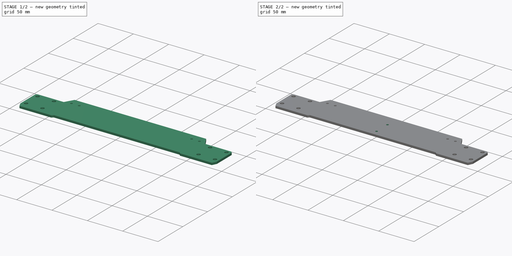
[diagram: build sequence overview — one tinted view per stage of 2, left to right]
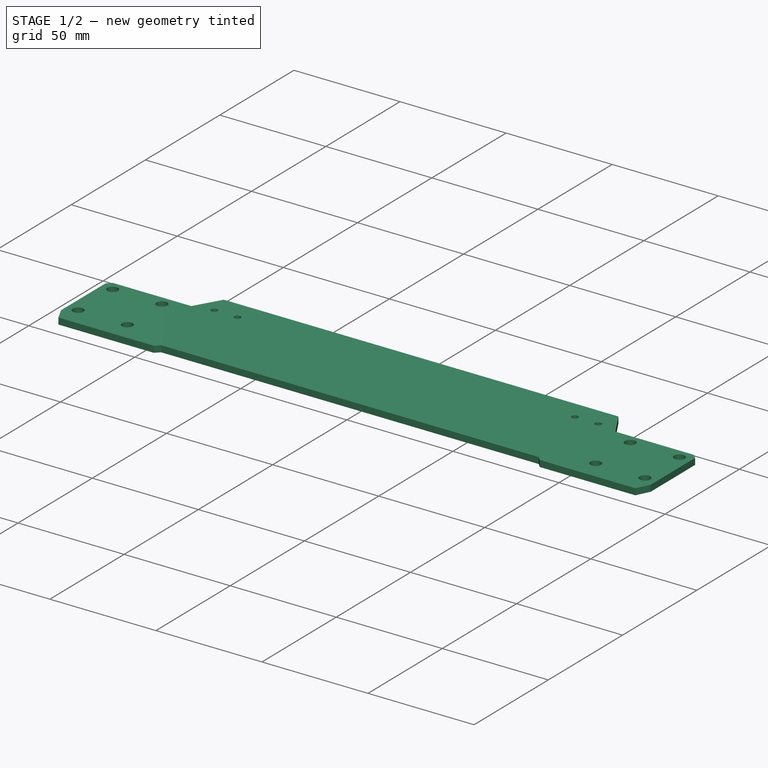
[diagram: stage 1 of 2 — iso view after this stage's code; geometry added in this stage tinted green]
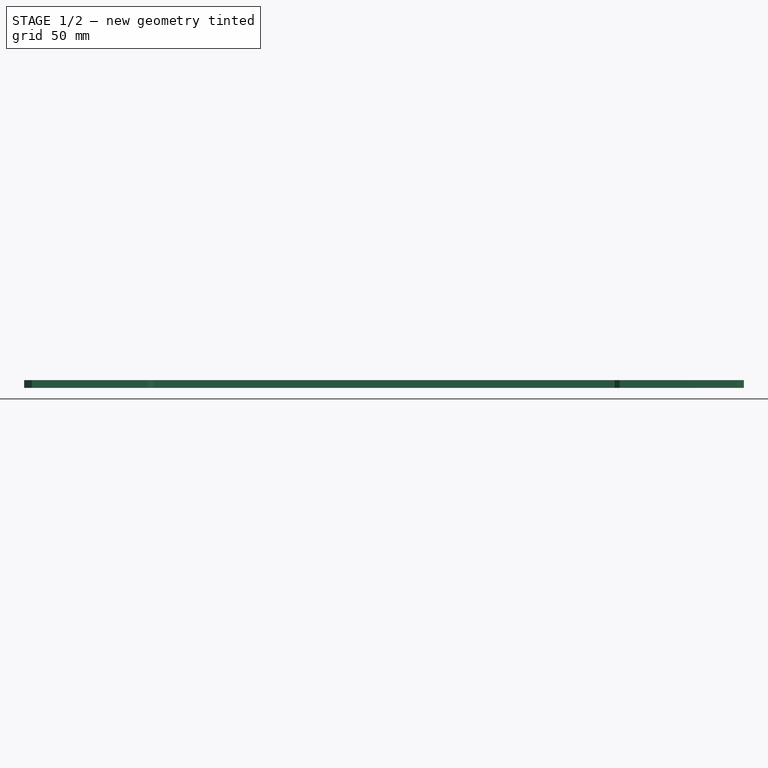
[diagram: stage 1 of 2 — front view after this stage's code; geometry added in this stage tinted green]
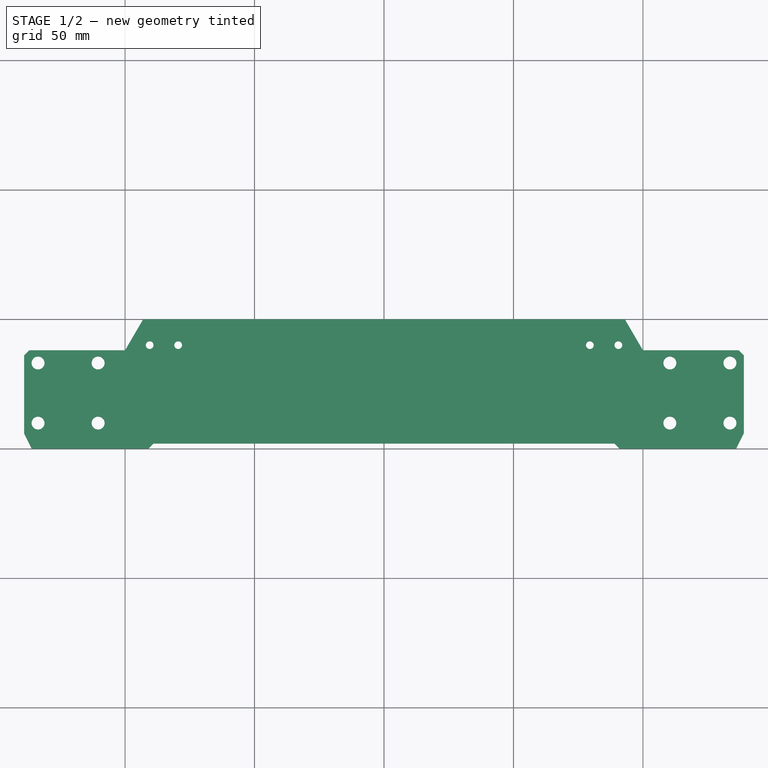
[diagram: stage 1 of 2 — top view after this stage's code; geometry added in this stage tinted green]
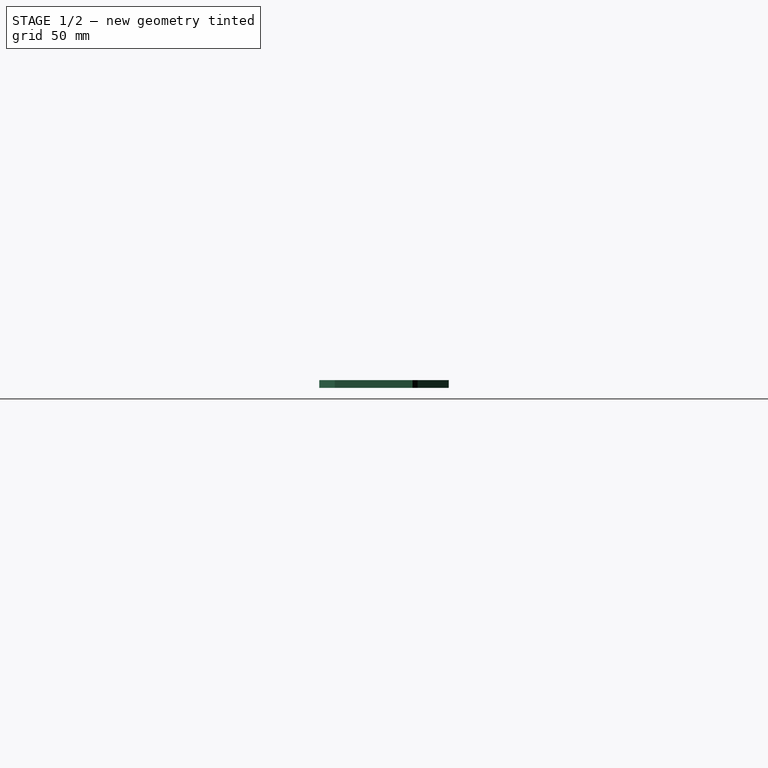
[diagram: stage 1 of 2 — right view after this stage's code; geometry added in this stage tinted green]
FCSTD DOCUMENT  (FreeCAD 0.21R33771 (Git))
Label: _MK3-rear-plate
License: Creative Commons Attribution 4.0
LicenseURL: https://creativecommons.org/licenses/by/4.0/
objects: Sketcher::SketchObject×2, PartDesign::Pad×1, PartDesign::Mirrored×1, PartDesign::Pocket×1, PartDesign::Body×1
note: 8 computed .brp shape members not serialized (recipe doc carries the construction recipe); baked Part::Feature solids carry a one-line shape summary decoded from their .brp

FEATURE [Sketcher::SketchObject] Sketch
  FullyConstrained = true
  MapMode = 5
  Support = -> [XY_Plane001]
  sketch-geometry (16):
    g0: LineSegment StartX=0 StartY=50 StartZ=0 EndX=0 EndY=2 EndZ=0
    g1: LineSegment StartX=0 StartY=2 StartZ=0 EndX=-89 EndY=2 EndZ=0
    g2: LineSegment StartX=-89 StartY=2 StartZ=0 EndX=-91 EndY=0 EndZ=0
    g3: LineSegment StartX=-91 StartY=0 StartZ=0 EndX=-136 EndY=0 EndZ=0
    g4: LineSegment StartX=-136 StartY=0 StartZ=0 EndX=-139 EndY=6 EndZ=0
    g5: LineSegment StartX=-139 StartY=6 StartZ=0 EndX=-139 EndY=36 EndZ=0
    g6: LineSegment StartX=-139 StartY=36 StartZ=0 EndX=-137.021 EndY=38 EndZ=0
    g7: LineSegment StartX=-137.021 StartY=38 StartZ=0 EndX=-100 EndY=38 EndZ=0
    g8: LineSegment StartX=-100 StartY=38 StartZ=0 EndX=-93 EndY=50 EndZ=0
    g9: LineSegment StartX=-93 StartY=50 StartZ=0 EndX=0 EndY=50 EndZ=0
    g10: Circle CenterX=-133.6 CenterY=33.1 CenterZ=0 NormalX=0 NormalY=0 NormalZ=1 AngleXU=0 Radius=2.5
    g11: Circle CenterX=-110.4 CenterY=33.1 CenterZ=0 NormalX=0 NormalY=0 NormalZ=1 AngleXU=0 Radius=2.5
    g12: Circle CenterX=-110.4 CenterY=9.9 CenterZ=0 NormalX=0 NormalY=0 NormalZ=1 AngleXU=0 Radius=2.5
    g13: Circle CenterX=-133.6 CenterY=9.9 CenterZ=0 NormalX=0 NormalY=0 NormalZ=1 AngleXU=0 Radius=2.5
    g14: Circle CenterX=-90.5 CenterY=40 CenterZ=0 NormalX=0 NormalY=0 NormalZ=1 AngleXU=0 Radius=1.5
    g15: Circle CenterX=-79.5 CenterY=40 CenterZ=0 NormalX=0 NormalY=0 NormalZ=1 AngleXU=0 Radius=1.5
  constraints (48):
    c: PointOnObject(g0,g-2)
    c: Coincident(g1,g2)
    c: PointOnObject(g2,g-1)
    c: Coincident(g2,g3)
    c: PointOnObject(g3,g-1)
    c: Coincident(g3,g4)
    c: Coincident(g4,g5)
    c: Vertical(g5)
    c: Coincident(g5,g6)
    c: Coincident(g6,g7)
    c: Horizontal(g7)
    c: Coincident(g7,g8)
    c: Coincident(g8,g9)
    c: Coincident(g9,g0)
    c: Horizontal(g9)
    c: Coincident(g0,g1)
    c: Vertical(g0)
    c: DistanceY(g-1,g0) = 2
    c: DistanceY(g-1,g0) = 50
    c: Horizontal(g1)
    c: DistanceX(g1,g-1) = 89
    c: DistanceX(g2,g-1) = 91
    c: DistanceX(g3,g0) = 136
    c: DistanceX(g5,g0) = 139
    c: DistanceY(g3,g4) = 6
    c: DistanceY(g3,g6) = 38
    c: Angle(g5,g6) = 2.36143
    c: DistanceY(g5,g6) = 2
    c: DistanceX(g9,g9) = 93
    c: DistanceX(g7,g0) = 100
    c: Horizontal(g10,g11)
    c: Horizontal(g13,g12)
    c: Vertical(g10,g13)
    c: Vertical(g11,g12)
    c: DistanceY(g-1,g12) = 9.9
    c: DistanceY(g12,g11) = 23.2
    c: DistanceX(g12,g0) = 110.4
    c: DistanceX(g10,g11) = 23.2
    c: Equal(g13,g10)
    c: Equal(g13,g11)
    c: Equal(g13,g12)
    c: Diameter(g13) = 5
    c: Horizontal(g14,g15)
    c: DistanceX(g14,g15) = 11
    c: DistanceY(g-1,g15) = 40
    c: DistanceX(g15,g0) = 79.5
    c: Equal(g14,g15)
    c: Diameter(g14) = 3
FEATURE [PartDesign::Pad] Pad
  Direction = (0,0,1)
  Length = 3
  Length2 = 10
  Profile = -> Sketch
  ReferenceAxis = -> Sketch [N_Axis]
  Refine = true
  Type = 0
FEATURE [PartDesign::Mirrored] Mirrored
  BaseFeature = -> Pad
  MirrorPlane = -> Sketch [V_Axis]
  Originals = -> [Pad]
  Refine = true
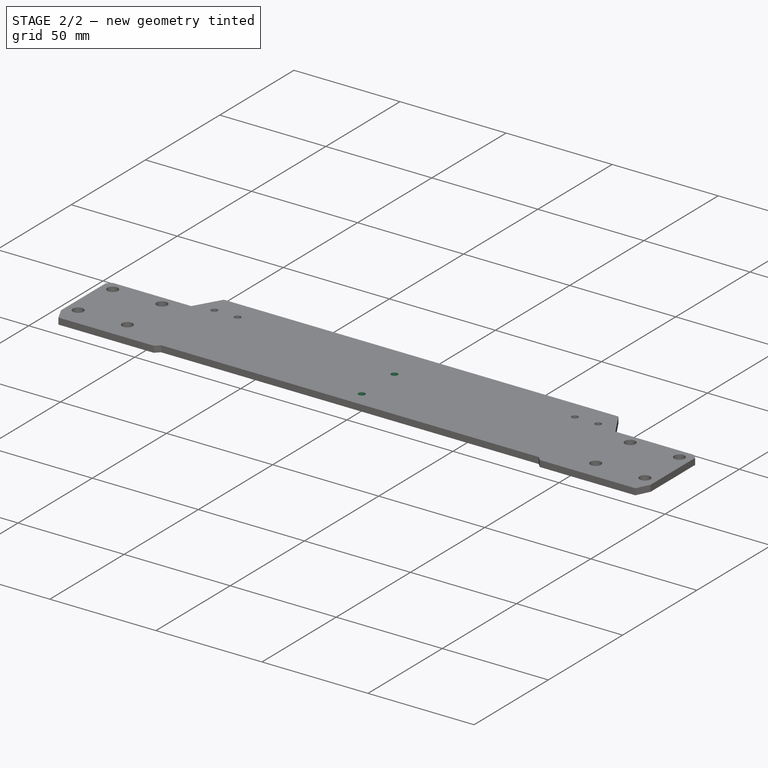
[diagram: stage 2 of 2 — iso view after this stage's code; geometry added in this stage tinted green]
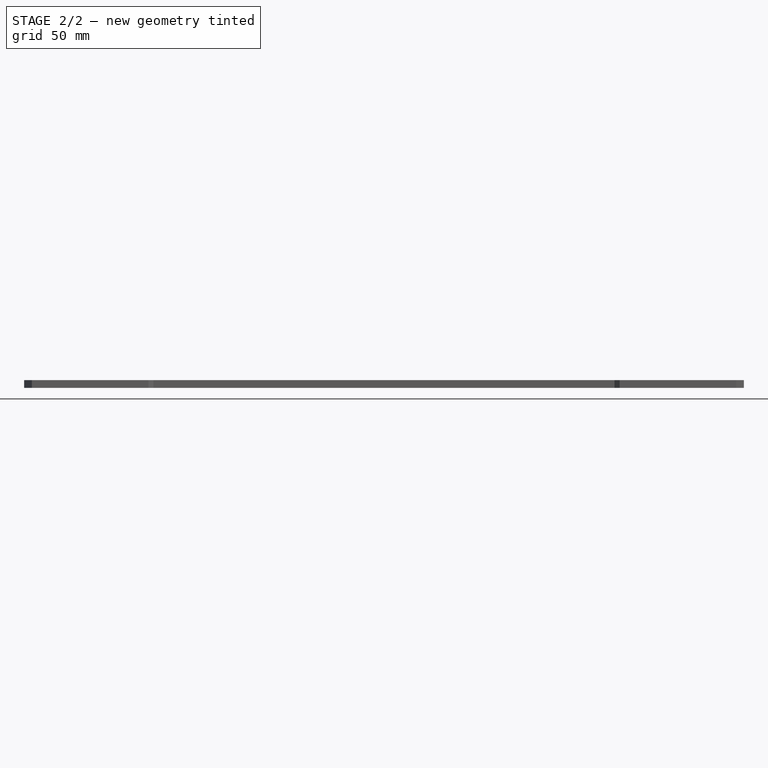
[diagram: stage 2 of 2 — front view after this stage's code; geometry added in this stage tinted green]
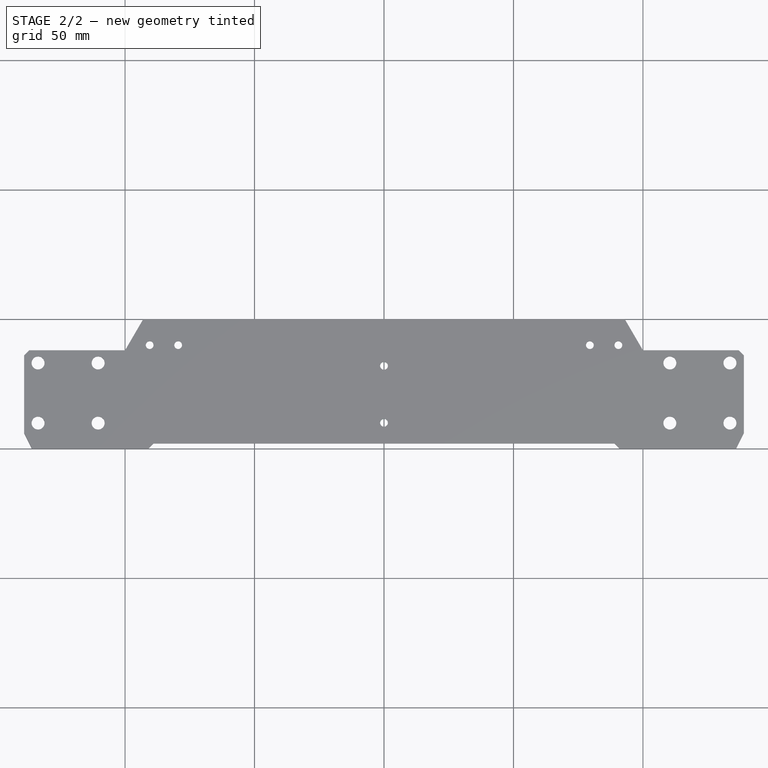
[diagram: stage 2 of 2 — top view after this stage's code; geometry added in this stage tinted green]
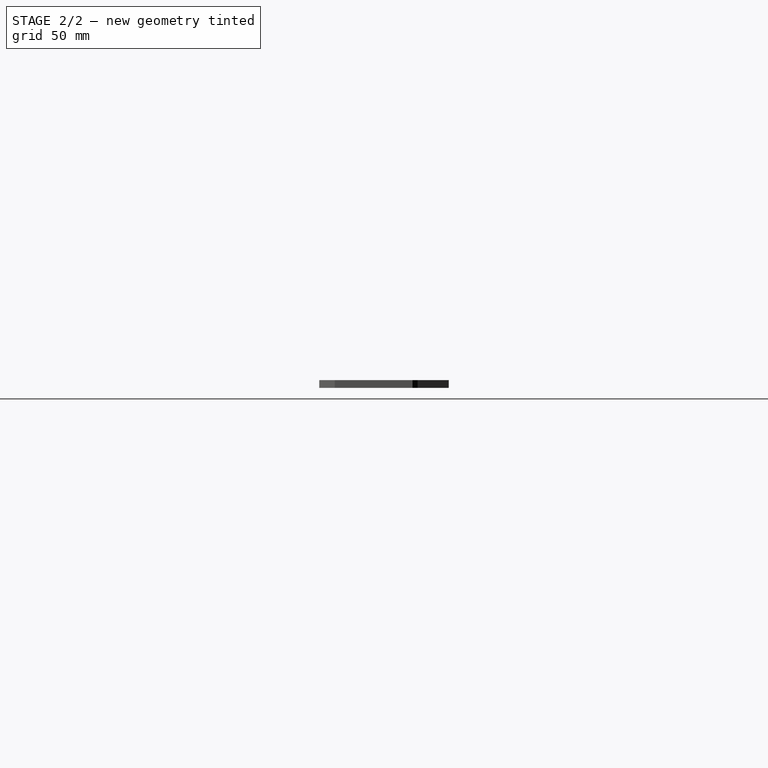
[diagram: stage 2 of 2 — right view after this stage's code; geometry added in this stage tinted green]
FEATURE [Sketcher::SketchObject] Sketch001
  AttachmentOffset = pos=(0,0,3) rot=(0,0,1;0rad)
  FullyConstrained = true
  MapMode = 5
  Placement = pos=(0,0,3) rot=(0,0,1;0rad)
  Support = -> [XY_Plane001]
  expr: .AttachmentOffset.Base.z = Pad.Length
  sketch-geometry (2):
    g0: Circle CenterX=0 CenterY=32 CenterZ=0 NormalX=0 NormalY=0 NormalZ=1 AngleXU=0 Radius=1.5
    g1: Circle CenterX=0 CenterY=10 CenterZ=0 NormalX=0 NormalY=0 NormalZ=1 AngleXU=0 Radius=1.5
  constraints (6):
    c: PointOnObject(g1,g-2)
    c: PointOnObject(g0,g-2)
    c: DistanceY(g1,g0) = 22
    c: DistanceY(g-1,g1) = 10
    c: Equal(g0,g1)
    c: Diameter(g0) = 3
FEATURE [PartDesign::Pocket] Pocket
  BaseFeature = -> Mirrored
  Direction = (0,0,-1)
  Length = 5
  Length2 = 5
  Profile = -> Sketch001
  ReferenceAxis = -> Sketch001 [N_Axis]
  Refine = true
  Type = 1
FEATURE [PartDesign::Body] Body  label="Rear-Plate"
  Group = -> [Sketch,Pad,Mirrored,Sketch001,Pocket]
  Origin = -> Origin001
  Tip = -> Pocket
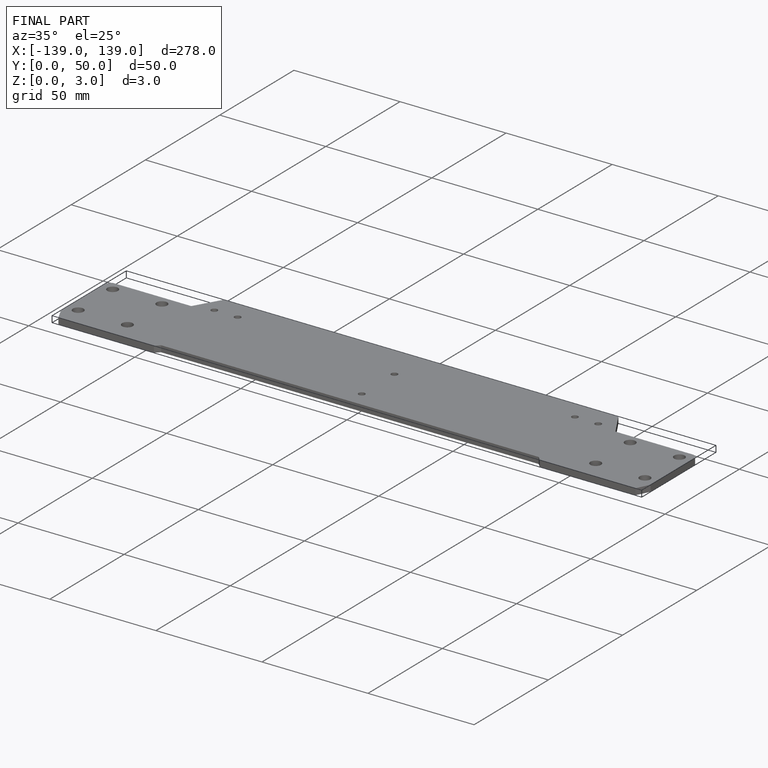
[diagram: finished part — iso view with bounding-box wireframe]
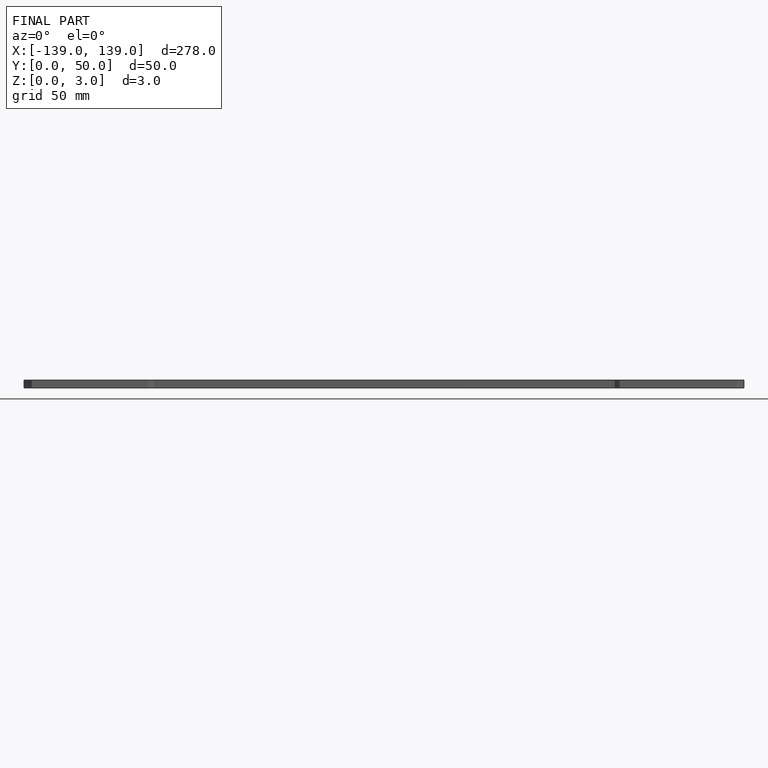
[diagram: finished part — front view with bounding-box wireframe]
